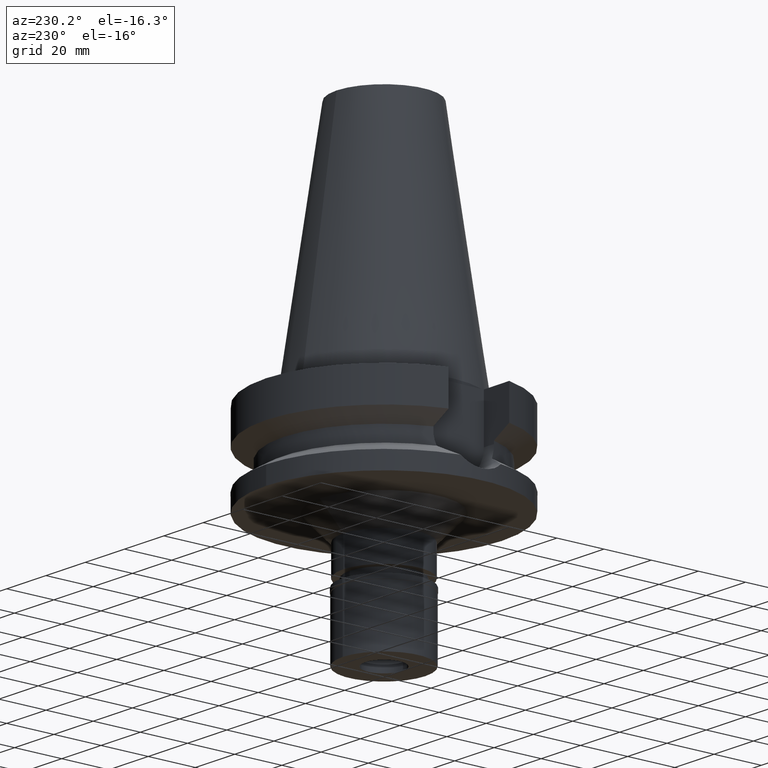
[diagram: clean part render]
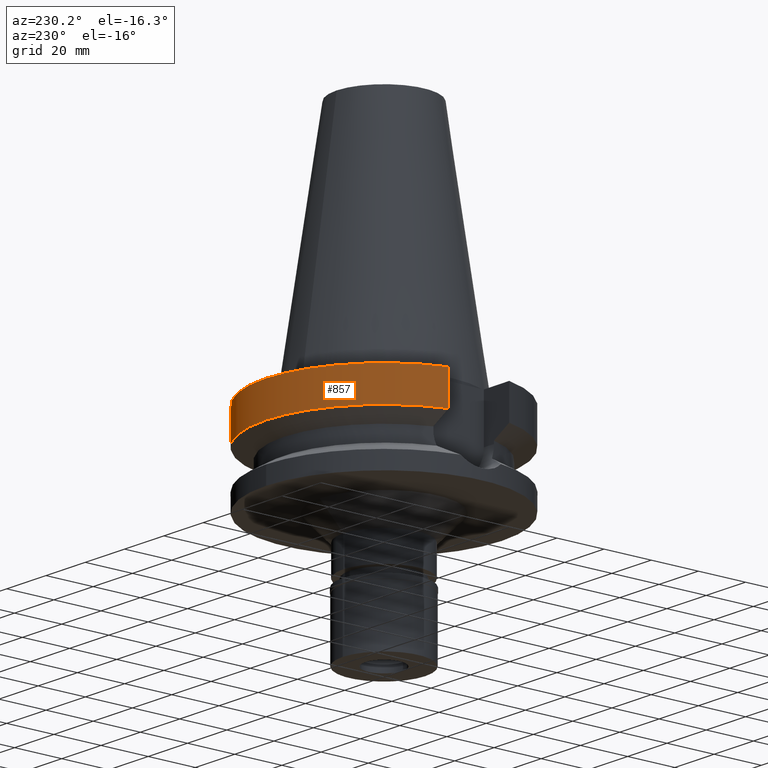
[diagram: same view with one face highlighted and labeled with its STEP entity id]
A machine part, auxiliary view. The second image highlights one B-rep face of the part: STEP entity #857.
In plain terms, the highlighted cylindrical surface (partial cylindrical patch) has radius 50 mm, axis along (0, 0, -1).
Its self-contained STEP definition (entity closure, byte-faithful):
#8 = DIRECTION ( 'NONE',  ( 0.0000000000000000000, 0.0000000000000000000, -1.000000000000000000 ) ) ;
#44 = DIRECTION ( 'NONE',  ( 7.194045954223718562E-08, -2.705215394884894467E-07, 0.9999999999999609201 ) ) ;
#53 = CARTESIAN_POINT ( 'NONE',  ( -48.32056913648000318, 12.85000382592000179, -15.66265796349000006 ) ) ;
#131 = CYLINDRICAL_SURFACE ( 'NONE', #499, 50.00000000000000000 ) ;
#179 = ORIENTED_EDGE ( 'NONE', *, *, #2545, .F. ) ;
#315 = ORIENTED_EDGE ( 'NONE', *, *, #1259, .F. ) ;
#499 = AXIS2_PLACEMENT_3D ( 'NONE', #2004, #1743, #1805 ) ;
#549 = ORIENTED_EDGE ( 'NONE', *, *, #2063, .T. ) ;
#857 = ADVANCED_FACE ( 'NONE', ( #1265 ), #131, .T. ) ;
#1052 = AXIS2_PLACEMENT_3D ( 'NONE', #2395, #2144, #1918 ) ;
#1140 = EDGE_CURVE ( 'NONE', #1572, #1227, #1997, .T. ) ;
#1221 = LINE ( 'NONE', #1658, #1937 ) ;
#1227 = VERTEX_POINT ( 'NONE', #2645 ) ;
#1247 = CIRCLE ( 'NONE', #1052, 50.00000000000000000 ) ;
#1259 = EDGE_CURVE ( 'NONE', #1794, #1227, #1221, .T. ) ;
#1265 = FACE_OUTER_BOUND ( 'NONE', #1449, .T. ) ;
#1407 = DIRECTION ( 'NONE',  ( 7.183936593455717882E-08, 2.701413925348894239E-07, -0.9999999999999609201 ) ) ;
#1440 = CARTESIAN_POINT ( 'NONE',  ( -48.32057015392000210, 12.84999999999999964, -1.500000000000000000 ) ) ;
#1441 = AXIS2_PLACEMENT_3D ( 'NONE', #2625, #8, #1675 ) ;
#1449 = EDGE_LOOP ( 'NONE', ( #179, #1626, #315, #549 ) ) ;
#1457 = LINE ( 'NONE', #1924, #2576 ) ;
#1572 = VERTEX_POINT ( 'NONE', #1440 ) ;
#1626 = ORIENTED_EDGE ( 'NONE', *, *, #1140, .T. ) ;
#1658 = CARTESIAN_POINT ( 'NONE',  ( 48.32056913505000040, 12.85000383130000046, -15.66265791524999784 ) ) ;
#1675 = DIRECTION ( 'NONE',  ( 0.0000000000000000000, 1.000000000000000000, 0.0000000000000000000 ) ) ;
#1743 = DIRECTION ( 'NONE',  ( 0.0000000000000000000, 0.0000000000000000000, -1.000000000000000000 ) ) ;
#1794 = VERTEX_POINT ( 'NONE', #3016 ) ;
#1805 = DIRECTION ( 'NONE',  ( 0.0000000000000000000, -1.000000000000000000, 0.0000000000000000000 ) ) ;
#1918 = DIRECTION ( 'NONE',  ( 0.0000000000000000000, 1.000000000000000000, 0.0000000000000000000 ) ) ;
#1924 = CARTESIAN_POINT ( 'NONE',  ( -48.32057015392000210, 12.84999999999999964, -1.500000000000000000 ) ) ;
#1937 = VECTOR ( 'NONE', #44, 999.9999999999998863 ) ;
#1997 = CIRCLE ( 'NONE', #1441, 50.00000000000000000 ) ;
#2004 = CARTESIAN_POINT ( 'NONE',  ( 0.0000000000000000000, 2.582045311321999724E-14, 110.8399999999999892 ) ) ;
#2063 = EDGE_CURVE ( 'NONE', #1794, #3070, #1247, .T. ) ;
#2144 = DIRECTION ( 'NONE',  ( 0.0000000000000000000, 0.0000000000000000000, 1.000000000000000000 ) ) ;
#2395 = CARTESIAN_POINT ( 'NONE',  ( 0.0000000000000000000, 1.006319759053999930E-14, -15.66269223573000069 ) ) ;
#2545 = EDGE_CURVE ( 'NONE', #1572, #3070, #1457, .T. ) ;
#2576 = VECTOR ( 'NONE', #1407, 1000.000000000000114 ) ;
#2625 = CARTESIAN_POINT ( 'NONE',  ( 0.0000000000000000000, 2.582045311321999724E-14, -1.500000000000000000 ) ) ;
#2645 = CARTESIAN_POINT ( 'NONE',  ( 48.32057015392000210, 12.84999999999999964, -1.500000000000000000 ) ) ;
#3016 = CARTESIAN_POINT ( 'NONE',  ( 48.32056913505000040, 12.85000383130000046, -15.66265791524999784 ) ) ;
#3070 = VERTEX_POINT ( 'NONE', #53 ) ;